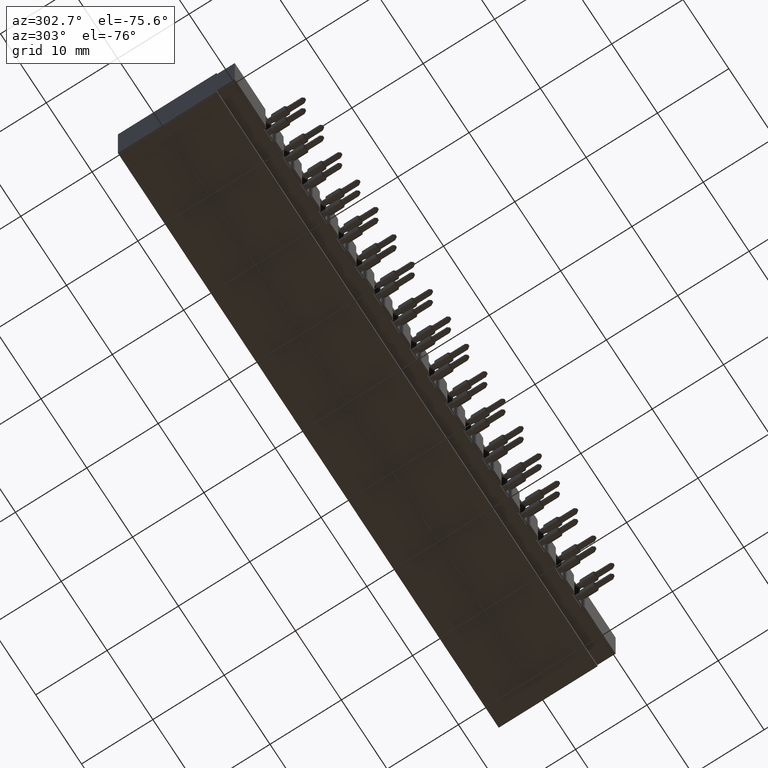
[diagram: clean part render]
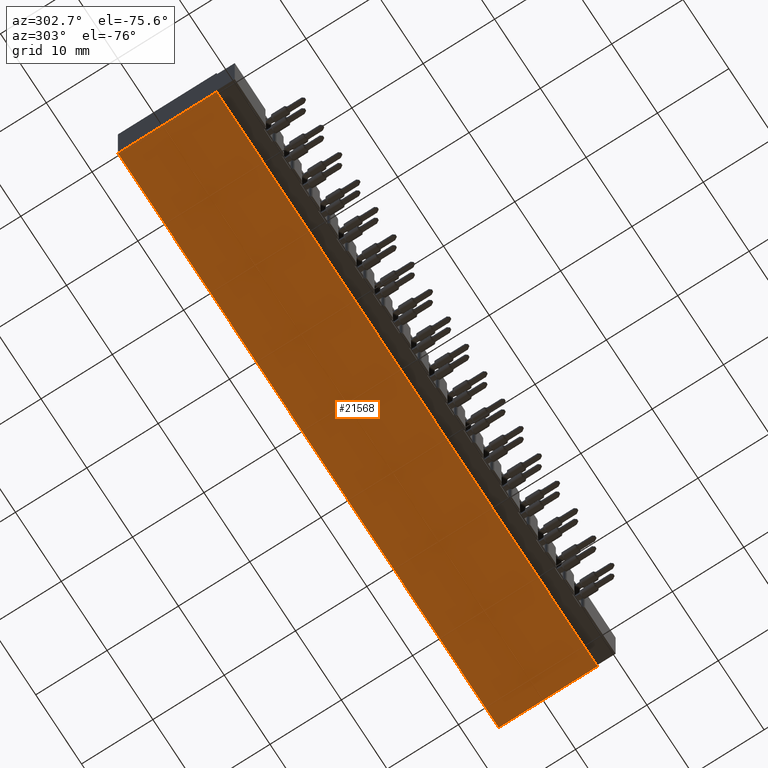
[diagram: same view with one face highlighted and labeled with its STEP entity id]
A machine part, auxiliary view. The second image highlights one B-rep face of the part: STEP entity #21568.
In plain terms, the highlighted planar face has unit normal (0, 0, 1).
Its self-contained STEP definition (entity closure, byte-faithful):
#406 = EDGE_LOOP ( 'NONE', ( #2862, #16238, #2690, #26073 ) ) ;
#2690 = ORIENTED_EDGE ( 'NONE', *, *, #25996, .F. ) ;
#2862 = ORIENTED_EDGE ( 'NONE', *, *, #26545, .T. ) ;
#3902 = CARTESIAN_POINT ( 'NONE',  ( 3.274000000000000021, 0.1000000000000000056, -0.3499999999999999778 ) ) ;
#5099 = CARTESIAN_POINT ( 'NONE',  ( 3.274000000000000021, 0.6449999999999999067, -0.3499999999999999778 ) ) ;
#6731 = CARTESIAN_POINT ( 'NONE',  ( 0.0000000000000000000, 0.6449999999999999067, -0.3499999999999999778 ) ) ;
#7760 = CARTESIAN_POINT ( 'NONE',  ( 0.0000000000000000000, 0.6449999999999999067, -0.3499999999999999778 ) ) ;
#7768 = EDGE_CURVE ( 'NONE', #14529, #14101, #25219, .T. ) ;
#8275 = LINE ( 'NONE', #13620, #20127 ) ;
#8502 = VECTOR ( 'NONE', #20936, 39.37007874015748143 ) ;
#10709 = EDGE_CURVE ( 'NONE', #23015, #21798, #20152, .T. ) ;
#11797 = CARTESIAN_POINT ( 'NONE',  ( 0.0000000000000000000, 0.6449999999999999067, -0.3499999999999999778 ) ) ;
#13000 = LINE ( 'NONE', #34097, #8502 ) ;
#13620 = CARTESIAN_POINT ( 'NONE',  ( 3.274000000000000021, 0.6449999999999999067, -0.3499999999999999778 ) ) ;
#14101 = VERTEX_POINT ( 'NONE', #7760 ) ;
#14529 = VERTEX_POINT ( 'NONE', #5099 ) ;
#16238 = ORIENTED_EDGE ( 'NONE', *, *, #10709, .T. ) ;
#17380 = DIRECTION ( 'NONE',  ( -1.000000000000000000, -0.0000000000000000000, -0.0000000000000000000 ) ) ;
#17678 = AXIS2_PLACEMENT_3D ( 'NONE', #11797, #21614, #32181 ) ;
#18793 = DIRECTION ( 'NONE',  ( -0.0000000000000000000, -1.000000000000000000, -0.0000000000000000000 ) ) ;
#19564 = FACE_OUTER_BOUND ( 'NONE', #406, .T. ) ;
#20127 = VECTOR ( 'NONE', #18793, 39.37007874015748143 ) ;
#20152 = LINE ( 'NONE', #3902, #28371 ) ;
#20936 = DIRECTION ( 'NONE',  ( -0.0000000000000000000, -1.000000000000000000, -0.0000000000000000000 ) ) ;
#21568 = ADVANCED_FACE ( 'NONE', ( #19564 ), #30122, .F. ) ;
#21614 = DIRECTION ( 'NONE',  ( 0.0000000000000000000, 0.0000000000000000000, 1.000000000000000000 ) ) ;
#21798 = VERTEX_POINT ( 'NONE', #23157 ) ;
#23015 = VERTEX_POINT ( 'NONE', #30967 ) ;
#23157 = CARTESIAN_POINT ( 'NONE',  ( 0.0000000000000000000, 0.1000000000000000056, -0.3499999999999999778 ) ) ;
#25219 = LINE ( 'NONE', #6731, #29342 ) ;
#25996 = EDGE_CURVE ( 'NONE', #14101, #21798, #13000, .T. ) ;
#26073 = ORIENTED_EDGE ( 'NONE', *, *, #7768, .F. ) ;
#26545 = EDGE_CURVE ( 'NONE', #14529, #23015, #8275, .T. ) ;
#27790 = DIRECTION ( 'NONE',  ( -1.000000000000000000, -0.0000000000000000000, -0.0000000000000000000 ) ) ;
#28371 = VECTOR ( 'NONE', #17380, 39.37007874015748143 ) ;
#29342 = VECTOR ( 'NONE', #27790, 39.37007874015748143 ) ;
#30122 = PLANE ( 'NONE',  #17678 ) ;
#30967 = CARTESIAN_POINT ( 'NONE',  ( 3.274000000000000021, 0.1000000000000000056, -0.3499999999999999778 ) ) ;
#32181 = DIRECTION ( 'NONE',  ( 1.000000000000000000, 0.0000000000000000000, -0.0000000000000000000 ) ) ;
#34097 = CARTESIAN_POINT ( 'NONE',  ( 0.0000000000000000000, 0.6449999999999999067, -0.3499999999999999778 ) ) ;